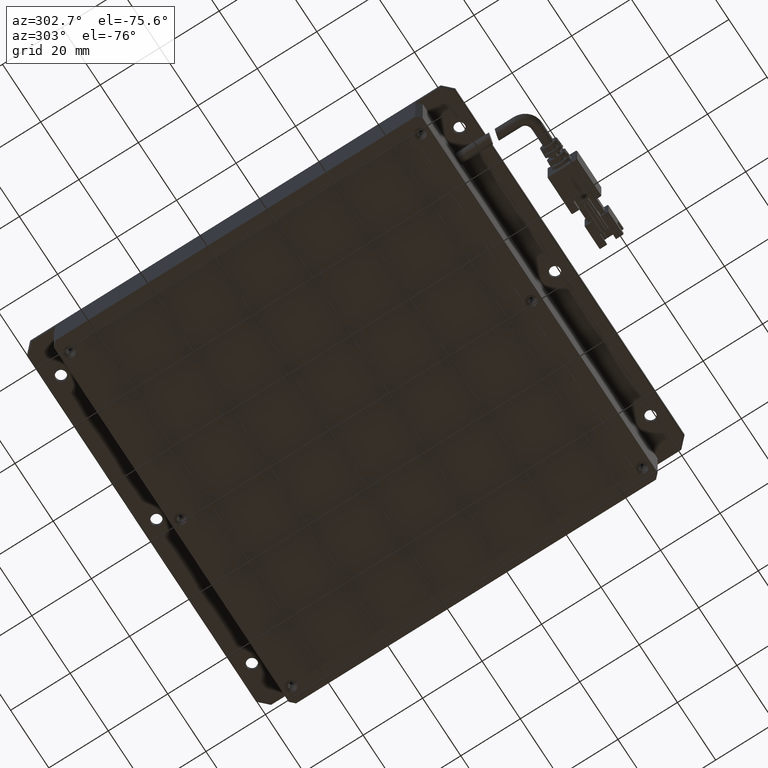
[diagram: clean part render]
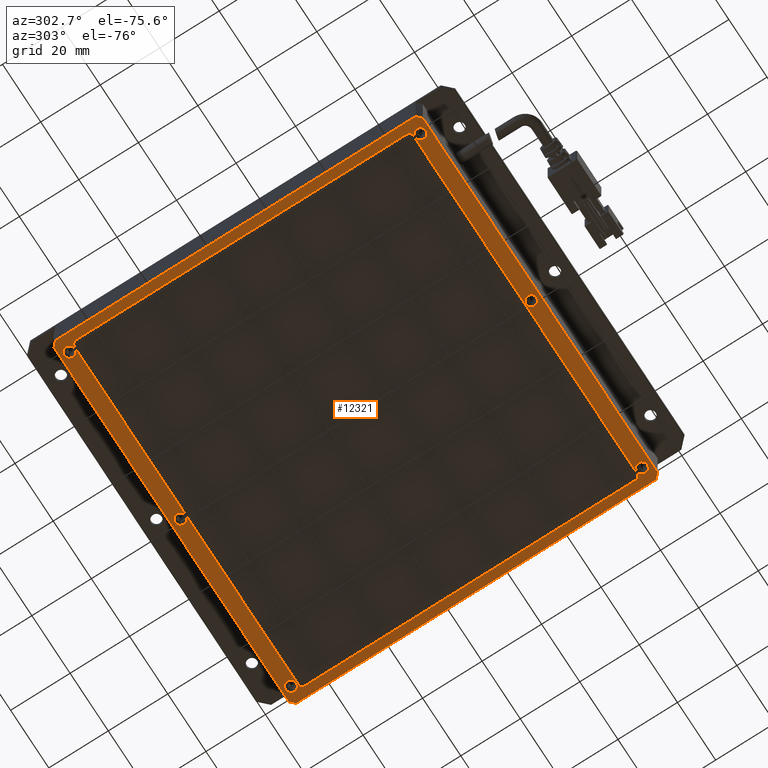
[diagram: same view with one face highlighted and labeled with its STEP entity id]
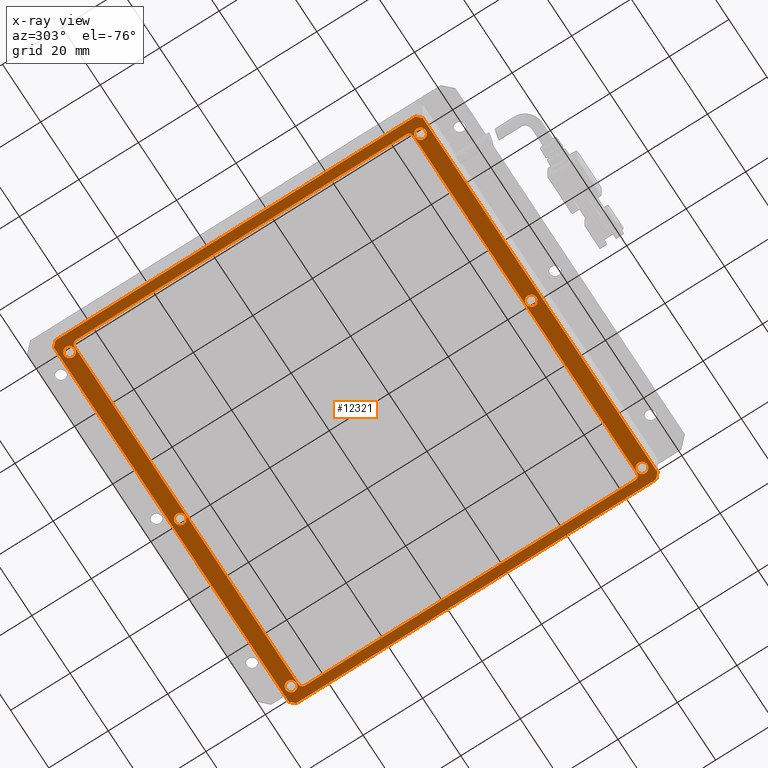
[diagram: x-ray of the same camera — body ghosted, the highlighted face saturated]
A machine part, auxiliary view. The second image highlights one B-rep face of the part: STEP entity #12321.
The next image is the same camera in x-ray: the body ghosted, the highlighted face saturated — about 0% of this face is hidden behind the body in this view.
In plain terms, the highlighted planar face has unit normal (0, 0, 1).
Its self-contained STEP definition (entity closure, byte-faithful):
#440 = AXIS2_PLACEMENT_3D ( 'NONE', #74087, #27330, #81998 ) ;
#531 = DIRECTION ( 'NONE',  ( -1.000000000000000000, 0.0000000000000000000, 0.0000000000000000000 ) ) ;
#542 = PLANE ( 'NONE',  #66380 ) ;
#879 = DIRECTION ( 'NONE',  ( -1.000000000000000000, -1.186135710069612200E-016, -0.0000000000000000000 ) ) ;
#1821 = CARTESIAN_POINT ( 'NONE',  ( -58.85509736540662100, -44.61034746086291100, -2.000000000016370500 ) ) ;
#2109 = DIRECTION ( 'NONE',  ( -0.7071067811865476800, -0.7071067811865474600, -0.0000000000000000000 ) ) ;
#2693 = VECTOR ( 'NONE', #25024, 1000.000000000000000 ) ;
#2706 = ORIENTED_EDGE ( 'NONE', *, *, #75679, .F. ) ;
#3501 = CARTESIAN_POINT ( 'NONE',  ( 58.14490263459337900, 66.38965253913711700, -2.000000000016370500 ) ) ;
#3723 = CARTESIAN_POINT ( 'NONE',  ( -58.35509736540665700, -48.11034746086285500, -1.999999999969077000 ) ) ;
#3908 = EDGE_CURVE ( 'NONE', #14291, #78319, #43312, .T. ) ;
#4017 = CARTESIAN_POINT ( 'NONE',  ( 1.444902634584452400, 69.88965253913711700, -2.000000000025920200 ) ) ;
#4241 = CIRCLE ( 'NONE', #57193, 1.799999999991086500 ) ;
#4464 = VERTEX_POINT ( 'NONE', #65370 ) ;
#4591 = CARTESIAN_POINT ( 'NONE',  ( -58.85509736540662100, -46.11034746086291100, -2.000000000016370500 ) ) ;
#4646 = VERTEX_POINT ( 'NONE', #5303 ) ;
#4801 = CARTESIAN_POINT ( 'NONE',  ( 59.64490263459336500, 66.38965253913711700, -2.000000000016370500 ) ) ;
#5161 = ORIENTED_EDGE ( 'NONE', *, *, #3908, .F. ) ;
#5303 = CARTESIAN_POINT ( 'NONE',  ( 61.14490263459332900, -51.11034746086289700, -2.000000000016370500 ) ) ;
#5624 = ORIENTED_EDGE ( 'NONE', *, *, #29976, .F. ) ;
#5629 = DIRECTION ( 'NONE',  ( 2.220446049250313100E-016, 1.000000000000000000, 0.0000000000000000000 ) ) ;
#5651 = CARTESIAN_POINT ( 'NONE',  ( 57.64490263459334300, -48.11034746086288300, -2.000000000025920200 ) ) ;
#5761 = ORIENTED_EDGE ( 'NONE', *, *, #56033, .F. ) ;
#5867 = CARTESIAN_POINT ( 'NONE',  ( 59.64490263459335000, -44.61034746086288300, -2.000000000016370500 ) ) ;
#5903 = CARTESIAN_POINT ( 'NONE',  ( 59.44490263459173500, 69.88965253913711700, -2.000000000025920200 ) ) ;
#6197 = VERTEX_POINT ( 'NONE', #72022 ) ;
#7665 = ORIENTED_EDGE ( 'NONE', *, *, #67743, .T. ) ;
#7766 = ORIENTED_EDGE ( 'NONE', *, *, #95490, .F. ) ;
#7785 = VERTEX_POINT ( 'NONE', #5903 ) ;
#8198 = FACE_BOUND ( 'NONE', #55170, .T. ) ;
#8314 = DIRECTION ( 'NONE',  ( -0.0000000000000000000, -0.0000000000000000000, 1.000000000000000000 ) ) ;
#9672 = DIRECTION ( 'NONE',  ( -1.000000000000000000, 0.0000000000000000000, 0.0000000000000000000 ) ) ;
#9941 = EDGE_CURVE ( 'NONE', #24478, #25543, #91719, .T. ) ;
#10024 = AXIS2_PLACEMENT_3D ( 'NONE', #3723, #58305, #11530 ) ;
#10477 = EDGE_CURVE ( 'NONE', #17158, #14399, #18162, .T. ) ;
#10598 = CIRCLE ( 'NONE', #440, 1.799999999983814500 ) ;
#11315 = DIRECTION ( 'NONE',  ( -1.000000000000000000, 0.0000000000000000000, 0.0000000000000000000 ) ) ;
#11530 = DIRECTION ( 'NONE',  ( -1.000000000000000000, 0.0000000000000000000, 0.0000000000000000000 ) ) ;
#12321 = ADVANCED_FACE ( 'NONE', ( #31469, #91363, #49776, #28983, #8198, #88924, #68015, #47318 ), #542, .F. ) ;
#12866 = VERTEX_POINT ( 'NONE', #15797 ) ;
#12951 = CIRCLE ( 'NONE', #53093, 1.799999999998365400 ) ;
#13172 = DIRECTION ( 'NONE',  ( 0.7071067811865411300, 0.7071067811865539000, -0.0000000000000000000 ) ) ;
#13478 = DIRECTION ( 'NONE',  ( -1.000000000000000000, 0.0000000000000000000, 0.0000000000000000000 ) ) ;
#13914 = ORIENTED_EDGE ( 'NONE', *, *, #45080, .F. ) ;
#14063 = EDGE_LOOP ( 'NONE', ( #51417, #22871 ) ) ;
#14291 = VERTEX_POINT ( 'NONE', #73460 ) ;
#14399 = VERTEX_POINT ( 'NONE', #4801 ) ;
#15280 = VERTEX_POINT ( 'NONE', #85291 ) ;
#15603 = ORIENTED_EDGE ( 'NONE', *, *, #20952, .F. ) ;
#15706 = VERTEX_POINT ( 'NONE', #75199 ) ;
#15797 = CARTESIAN_POINT ( 'NONE',  ( 62.64490263459333600, -49.61034746086289700, -2.000000000016370500 ) ) ;
#16691 = VECTOR ( 'NONE', #49073, 1000.000000000000000 ) ;
#17158 = VERTEX_POINT ( 'NONE', #94002 ) ;
#17235 = CARTESIAN_POINT ( 'NONE',  ( -58.85509736540662100, -46.11034746086291100, -2.000000000016370500 ) ) ;
#17367 = CARTESIAN_POINT ( 'NONE',  ( -56.55509736542284600, -48.11034746086285500, -1.999999999969077000 ) ) ;
#18162 = CIRCLE ( 'NONE', #37969, 1.499999999999994400 ) ;
#18848 = LINE ( 'NONE', #28828, #99577 ) ;
#19947 = AXIS2_PLACEMENT_3D ( 'NONE', #55095, #8314, #62918 ) ;
#20442 = DIRECTION ( 'NONE',  ( 0.0000000000000000000, 0.0000000000000000000, -1.000000000000000000 ) ) ;
#20952 = EDGE_CURVE ( 'NONE', #101360, #79548, #65846, .T. ) ;
#20986 = CIRCLE ( 'NONE', #49312, 1.799999999998365400 ) ;
#21128 = DIRECTION ( 'NONE',  ( 0.0000000000000000000, 0.0000000000000000000, -1.000000000000000000 ) ) ;
#21721 = CARTESIAN_POINT ( 'NONE',  ( 62.64490263459336500, 71.38965253913708900, -2.000000000016370500 ) ) ;
#21985 = CARTESIAN_POINT ( 'NONE',  ( -0.3550973654066619200, -48.11034746086286900, -2.000000000025920200 ) ) ;
#22819 = CARTESIAN_POINT ( 'NONE',  ( 61.14490263459339300, 72.88965253913708900, -2.000000000016370500 ) ) ;
#22871 = ORIENTED_EDGE ( 'NONE', *, *, #90495, .F. ) ;
#23173 = EDGE_CURVE ( 'NONE', #79007, #17158, #93232, .T. ) ;
#23321 = EDGE_LOOP ( 'NONE', ( #49355, #26774 ) ) ;
#24055 = AXIS2_PLACEMENT_3D ( 'NONE', #73592, #26841, #81493 ) ;
#24444 = DIRECTION ( 'NONE',  ( 0.0000000000000000000, 0.0000000000000000000, 1.000000000000000000 ) ) ;
#24478 = VERTEX_POINT ( 'NONE', #81053 ) ;
#25024 = DIRECTION ( 'NONE',  ( -2.220446049250313100E-016, -1.000000000000000000, -0.0000000000000000000 ) ) ;
#25223 = CIRCLE ( 'NONE', #24055, 1.799999999983814500 ) ;
#25288 = CARTESIAN_POINT ( 'NONE',  ( 61.14490263459333600, -51.11034746086289700, -2.000000000016370500 ) ) ;
#25543 = VERTEX_POINT ( 'NONE', #4591 ) ;
#25671 = ORIENTED_EDGE ( 'NONE', *, *, #93456, .T. ) ;
#26164 = ORIENTED_EDGE ( 'NONE', *, *, #76816, .F. ) ;
#26183 = CARTESIAN_POINT ( 'NONE',  ( -63.35509736540666400, -49.61034746086286900, -2.000000000016370500 ) ) ;
#26479 = DIRECTION ( 'NONE',  ( -0.0000000000000000000, -0.0000000000000000000, 1.000000000000000000 ) ) ;
#26774 = ORIENTED_EDGE ( 'NONE', *, *, #27397, .T. ) ;
#26841 = DIRECTION ( 'NONE',  ( -0.0000000000000000000, -0.0000000000000000000, 1.000000000000000000 ) ) ;
#27074 = LINE ( 'NONE', #25288, #89443 ) ;
#27330 = DIRECTION ( 'NONE',  ( 0.0000000000000000000, 0.0000000000000000000, -1.000000000000000000 ) ) ;
#27397 = EDGE_CURVE ( 'NONE', #6197, #41794, #42112, .T. ) ;
#27546 = CARTESIAN_POINT ( 'NONE',  ( -61.85509736540663500, -51.11034746086287600, -2.000000000016370500 ) ) ;
#28302 = EDGE_LOOP ( 'NONE', ( #2706, #5761 ) ) ;
#28688 = ORIENTED_EDGE ( 'NONE', *, *, #85680, .T. ) ;
#28766 = VERTEX_POINT ( 'NONE', #21721 ) ;
#28828 = CARTESIAN_POINT ( 'NONE',  ( -63.35509736540666400, -51.11034746086286900, -2.000000000016370500 ) ) ;
#28983 = FACE_BOUND ( 'NONE', #14063, .T. ) ;
#29857 = DIRECTION ( 'NONE',  ( -1.000000000000000000, 0.0000000000000000000, 0.0000000000000000000 ) ) ;
#29976 = EDGE_CURVE ( 'NONE', #79548, #101360, #54242, .T. ) ;
#30332 = DIRECTION ( 'NONE',  ( 0.7071067811865474600, -0.7071067811865476800, -0.0000000000000000000 ) ) ;
#31010 = CARTESIAN_POINT ( 'NONE',  ( 58.14490263459335000, -44.61034746086289000, -2.000000000016370500 ) ) ;
#31433 = ORIENTED_EDGE ( 'NONE', *, *, #9941, .F. ) ;
#31469 = FACE_BOUND ( 'NONE', #77094, .T. ) ;
#31583 = VERTEX_POINT ( 'NONE', #98974 ) ;
#32650 = DIRECTION ( 'NONE',  ( 0.0000000000000000000, 0.0000000000000000000, -1.000000000000000000 ) ) ;
#33558 = AXIS2_PLACEMENT_3D ( 'NONE', #79435, #32650, #87359 ) ;
#34021 = DIRECTION ( 'NONE',  ( -0.7071067811865474600, 0.7071067811865476800, 0.0000000000000000000 ) ) ;
#34121 = VECTOR ( 'NONE', #13172, 1000.000000000000000 ) ;
#34294 = CARTESIAN_POINT ( 'NONE',  ( -2.155097365397720600, 69.88965253913711700, -2.000000000025920200 ) ) ;
#34430 = EDGE_CURVE ( 'NONE', #36602, #7785, #20986, .T. ) ;
#35238 = VERTEX_POINT ( 'NONE', #68927 ) ;
#36538 = LINE ( 'NONE', #44288, #34121 ) ;
#36602 = VERTEX_POINT ( 'NONE', #38988 ) ;
#37073 = LINE ( 'NONE', #61872, #73742 ) ;
#37969 = AXIS2_PLACEMENT_3D ( 'NONE', #3501, #58041, #11315 ) ;
#38208 = VERTEX_POINT ( 'NONE', #17367 ) ;
#38788 = DIRECTION ( 'NONE',  ( -1.000000000000000000, 0.0000000000000000000, 0.0000000000000000000 ) ) ;
#38988 = CARTESIAN_POINT ( 'NONE',  ( 55.84490263459500200, 69.88965253913711700, -2.000000000025920200 ) ) ;
#41734 = ORIENTED_EDGE ( 'NONE', *, *, #23173, .F. ) ;
#41794 = VERTEX_POINT ( 'NONE', #97285 ) ;
#42112 = CIRCLE ( 'NONE', #84023, 1.799999999983814500 ) ;
#42534 = EDGE_CURVE ( 'NONE', #50732, #77488, #37073, .T. ) ;
#43013 = DIRECTION ( 'NONE',  ( 0.0000000000000000000, 0.0000000000000000000, -1.000000000000000000 ) ) ;
#43312 = LINE ( 'NONE', #58287, #64063 ) ;
#44288 = CARTESIAN_POINT ( 'NONE',  ( -61.85509736540663500, 72.88965253913711700, -2.000000000016370500 ) ) ;
#45080 = EDGE_CURVE ( 'NONE', #38208, #4464, #99896, .T. ) ;
#45270 = DIRECTION ( 'NONE',  ( 0.0000000000000000000, 0.0000000000000000000, -1.000000000000000000 ) ) ;
#45680 = CIRCLE ( 'NONE', #33558, 1.499999999999994400 ) ;
#46062 = LINE ( 'NONE', #77076, #66786 ) ;
#46553 = DIRECTION ( 'NONE',  ( 1.000000000000000000, -2.220446049250313100E-016, -0.0000000000000000000 ) ) ;
#47318 = FACE_BOUND ( 'NONE', #69818, .T. ) ;
#47338 = DIRECTION ( 'NONE',  ( 0.0000000000000000000, 0.0000000000000000000, -1.000000000000000000 ) ) ;
#48614 = CARTESIAN_POINT ( 'NONE',  ( 62.64490263459333600, -51.11034746086289700, -2.000000000016370500 ) ) ;
#48738 = ORIENTED_EDGE ( 'NONE', *, *, #42534, .T. ) ;
#48870 = VERTEX_POINT ( 'NONE', #27546 ) ;
#49073 = DIRECTION ( 'NONE',  ( -1.000000000000000000, 2.220446049250313100E-016, 0.0000000000000000000 ) ) ;
#49140 = CIRCLE ( 'NONE', #61281, 1.499999999999994400 ) ;
#49221 = ORIENTED_EDGE ( 'NONE', *, *, #88664, .T. ) ;
#49312 = AXIS2_PLACEMENT_3D ( 'NONE', #92123, #45270, #99978 ) ;
#49355 = ORIENTED_EDGE ( 'NONE', *, *, #85806, .T. ) ;
#49776 = FACE_BOUND ( 'NONE', #68275, .T. ) ;
#50732 = VERTEX_POINT ( 'NONE', #77355 ) ;
#51417 = ORIENTED_EDGE ( 'NONE', *, *, #34430, .F. ) ;
#51639 = VECTOR ( 'NONE', #61795, 1000.000000000000000 ) ;
#51763 = EDGE_CURVE ( 'NONE', #4464, #38208, #10598, .T. ) ;
#52239 = VERTEX_POINT ( 'NONE', #80171 ) ;
#52980 = AXIS2_PLACEMENT_3D ( 'NONE', #67157, #20442, #75043 ) ;
#53085 = CIRCLE ( 'NONE', #97302, 1.500000000000001300 ) ;
#53093 = AXIS2_PLACEMENT_3D ( 'NONE', #89887, #43013, #97730 ) ;
#53959 = CARTESIAN_POINT ( 'NONE',  ( 58.14490263459337900, 67.88965253913711700, -2.000000000016370500 ) ) ;
#54242 = CIRCLE ( 'NONE', #90663, 1.799999999991086500 ) ;
#54974 = VERTEX_POINT ( 'NONE', #99827 ) ;
#55095 = CARTESIAN_POINT ( 'NONE',  ( 57.64490263459334300, -48.11034746086288300, -2.000000000025920200 ) ) ;
#55170 = EDGE_LOOP ( 'NONE', ( #15603, #5624 ) ) ;
#55581 = CIRCLE ( 'NONE', #19947, 1.799999999998365400 ) ;
#55771 = VECTOR ( 'NONE', #34021, 1000.000000000000000 ) ;
#56033 = EDGE_CURVE ( 'NONE', #54974, #15706, #4241, .T. ) ;
#56366 = DIRECTION ( 'NONE',  ( 0.0000000000000000000, 0.0000000000000000000, -1.000000000000000000 ) ) ;
#57193 = AXIS2_PLACEMENT_3D ( 'NONE', #21985, #76596, #29857 ) ;
#58041 = DIRECTION ( 'NONE',  ( 0.0000000000000000000, 0.0000000000000000000, -1.000000000000000000 ) ) ;
#58090 = ORIENTED_EDGE ( 'NONE', *, *, #89455, .T. ) ;
#58287 = CARTESIAN_POINT ( 'NONE',  ( -60.35509736540662100, 66.38965253913713100, -2.000000000016370500 ) ) ;
#58305 = DIRECTION ( 'NONE',  ( 0.0000000000000000000, 0.0000000000000000000, -1.000000000000000000 ) ) ;
#59069 = ORIENTED_EDGE ( 'NONE', *, *, #76246, .T. ) ;
#60097 = EDGE_LOOP ( 'NONE', ( #49221, #28688, #7665, #78297, #58090, #48738, #89652, #25671 ) ) ;
#60219 = DIRECTION ( 'NONE',  ( -0.0000000000000000000, -0.0000000000000000000, 1.000000000000000000 ) ) ;
#61281 = AXIS2_PLACEMENT_3D ( 'NONE', #1821, #56366, #9672 ) ;
#61795 = DIRECTION ( 'NONE',  ( 1.000000000000000000, -1.186135710069611900E-016, -0.0000000000000000000 ) ) ;
#61872 = CARTESIAN_POINT ( 'NONE',  ( 62.64490263459336500, 72.88965253913708900, -2.000000000016370500 ) ) ;
#62419 = EDGE_CURVE ( 'NONE', #77488, #28766, #46062, .T. ) ;
#62918 = DIRECTION ( 'NONE',  ( -1.000000000000000000, 0.0000000000000000000, 0.0000000000000000000 ) ) ;
#64063 = VECTOR ( 'NONE', #74036, 1000.000000000000000 ) ;
#64667 = CARTESIAN_POINT ( 'NONE',  ( -60.35509736540662100, 66.38965253913713100, -2.000000000016370500 ) ) ;
#65353 = ORIENTED_EDGE ( 'NONE', *, *, #92614, .F. ) ;
#65370 = CARTESIAN_POINT ( 'NONE',  ( -60.15509736539047500, -48.11034746086285500, -1.999999999969077000 ) ) ;
#65846 = CIRCLE ( 'NONE', #52980, 1.799999999991086500 ) ;
#66380 = AXIS2_PLACEMENT_3D ( 'NONE', #71200, #24444, #79085 ) ;
#66526 = LINE ( 'NONE', #5867, #98410 ) ;
#66786 = VECTOR ( 'NONE', #30332, 1000.000000000000000 ) ;
#67157 = CARTESIAN_POINT ( 'NONE',  ( -0.3550973654066341700, 69.88965253913711700, -2.000000000025920200 ) ) ;
#67743 = EDGE_CURVE ( 'NONE', #48870, #52239, #97451, .T. ) ;
#67845 = CARTESIAN_POINT ( 'NONE',  ( -0.3550973654066619200, -48.11034746086286900, -2.000000000025920200 ) ) ;
#68015 = FACE_OUTER_BOUND ( 'NONE', #60097, .T. ) ;
#68137 = EDGE_CURVE ( 'NONE', #15280, #70962, #55581, .T. ) ;
#68275 = EDGE_LOOP ( 'NONE', ( #72007, #13914 ) ) ;
#68291 = DIRECTION ( 'NONE',  ( -1.250251153857158300E-016, -1.000000000000000000, -0.0000000000000000000 ) ) ;
#68927 = CARTESIAN_POINT ( 'NONE',  ( 59.64490263459335000, -44.61034746086289000, -2.000000000016370500 ) ) ;
#69818 = EDGE_LOOP ( 'NONE', ( #75346, #31433, #65353, #26164, #100019, #41734, #7766, #5161 ) ) ;
#70962 = VERTEX_POINT ( 'NONE', #74192 ) ;
#71200 = CARTESIAN_POINT ( 'NONE',  ( 62.64490263459336500, 72.88965253913708900, -2.000000000016370500 ) ) ;
#72007 = ORIENTED_EDGE ( 'NONE', *, *, #51763, .F. ) ;
#72022 = CARTESIAN_POINT ( 'NONE',  ( -56.55509736542281700, 69.88965253913714500, -1.999999999969077000 ) ) ;
#72187 = CIRCLE ( 'NONE', #92722, 1.799999999991086500 ) ;
#73244 = CARTESIAN_POINT ( 'NONE',  ( -58.35509736540662800, 69.88965253913714500, -1.999999999969077000 ) ) ;
#73460 = CARTESIAN_POINT ( 'NONE',  ( -60.35509736540662100, -44.61034746086291100, -2.000000000016370500 ) ) ;
#73592 = CARTESIAN_POINT ( 'NONE',  ( -58.35509736540662800, 69.88965253913714500, -1.999999999969077000 ) ) ;
#73742 = VECTOR ( 'NONE', #46553, 1000.000000000000000 ) ;
#74036 = DIRECTION ( 'NONE',  ( -0.0000000000000000000, 1.000000000000000000, -0.0000000000000000000 ) ) ;
#74087 = CARTESIAN_POINT ( 'NONE',  ( -58.35509736540665700, -48.11034746086285500, -1.999999999969077000 ) ) ;
#74192 = CARTESIAN_POINT ( 'NONE',  ( 59.44490263459170600, -48.11034746086288300, -2.000000000025920200 ) ) ;
#75043 = DIRECTION ( 'NONE',  ( -1.000000000000000000, 0.0000000000000000000, 0.0000000000000000000 ) ) ;
#75199 = CARTESIAN_POINT ( 'NONE',  ( -2.155097365397748500, -48.11034746086286900, -2.000000000025920200 ) ) ;
#75346 = ORIENTED_EDGE ( 'NONE', *, *, #93445, .F. ) ;
#75679 = EDGE_CURVE ( 'NONE', #15706, #54974, #72187, .T. ) ;
#75752 = DIRECTION ( 'NONE',  ( -1.000000000000000000, 0.0000000000000000000, 0.0000000000000000000 ) ) ;
#76246 = EDGE_CURVE ( 'NONE', #70962, #15280, #95069, .T. ) ;
#76596 = DIRECTION ( 'NONE',  ( 0.0000000000000000000, 0.0000000000000000000, -1.000000000000000000 ) ) ;
#76816 = EDGE_CURVE ( 'NONE', #14399, #35238, #66526, .T. ) ;
#77076 = CARTESIAN_POINT ( 'NONE',  ( 62.64490263459336500, 71.38965253913711700, -2.000000000016370500 ) ) ;
#77094 = EDGE_LOOP ( 'NONE', ( #93638, #59069 ) ) ;
#77355 = CARTESIAN_POINT ( 'NONE',  ( -61.85509736540662100, 72.88965253913711700, -2.000000000016370500 ) ) ;
#77488 = VERTEX_POINT ( 'NONE', #22819 ) ;
#78297 = ORIENTED_EDGE ( 'NONE', *, *, #80537, .T. ) ;
#78319 = VERTEX_POINT ( 'NONE', #64667 ) ;
#79007 = VERTEX_POINT ( 'NONE', #82021 ) ;
#79085 = DIRECTION ( 'NONE',  ( 1.000000000000000000, -2.220446049250313100E-016, 0.0000000000000000000 ) ) ;
#79435 = CARTESIAN_POINT ( 'NONE',  ( -58.85509736540662100, 66.38965253913713100, -2.000000000016370500 ) ) ;
#79548 = VERTEX_POINT ( 'NONE', #4017 ) ;
#80171 = CARTESIAN_POINT ( 'NONE',  ( -63.35509736540666400, -49.61034746086287600, -2.000000000016370500 ) ) ;
#80537 = EDGE_CURVE ( 'NONE', #52239, #31583, #18848, .T. ) ;
#81053 = CARTESIAN_POINT ( 'NONE',  ( 58.14490263459335000, -46.11034746086289700, -2.000000000016370500 ) ) ;
#81118 = DIRECTION ( 'NONE',  ( -1.000000000000000000, 0.0000000000000000000, 0.0000000000000000000 ) ) ;
#81493 = DIRECTION ( 'NONE',  ( -1.000000000000000000, 0.0000000000000000000, 0.0000000000000000000 ) ) ;
#81998 = DIRECTION ( 'NONE',  ( -1.000000000000000000, 0.0000000000000000000, 0.0000000000000000000 ) ) ;
#82021 = CARTESIAN_POINT ( 'NONE',  ( -58.85509736540662800, 67.88965253913713100, -2.000000000016370500 ) ) ;
#84023 = AXIS2_PLACEMENT_3D ( 'NONE', #73244, #26479, #81118 ) ;
#85291 = CARTESIAN_POINT ( 'NONE',  ( 55.84490263459497300, -48.11034746086288300, -2.000000000025920200 ) ) ;
#85680 = EDGE_CURVE ( 'NONE', #4646, #48870, #99846, .T. ) ;
#85691 = DIRECTION ( 'NONE',  ( 0.0000000000000000000, 0.0000000000000000000, -1.000000000000000000 ) ) ;
#85806 = EDGE_CURVE ( 'NONE', #41794, #6197, #25223, .T. ) ;
#85828 = LINE ( 'NONE', #48614, #2693 ) ;
#87359 = DIRECTION ( 'NONE',  ( -1.000000000000000000, 0.0000000000000000000, 0.0000000000000000000 ) ) ;
#88036 = CARTESIAN_POINT ( 'NONE',  ( 62.64490263459333600, -51.11034746086289700, -2.000000000016370500 ) ) ;
#88664 = EDGE_CURVE ( 'NONE', #12866, #4646, #27074, .T. ) ;
#88924 = FACE_BOUND ( 'NONE', #23321, .T. ) ;
#89278 = VECTOR ( 'NONE', #879, 1000.000000000000000 ) ;
#89443 = VECTOR ( 'NONE', #2109, 1000.000000000000000 ) ;
#89455 = EDGE_CURVE ( 'NONE', #31583, #50732, #36538, .T. ) ;
#89652 = ORIENTED_EDGE ( 'NONE', *, *, #62419, .T. ) ;
#89887 = CARTESIAN_POINT ( 'NONE',  ( 57.64490263459337200, 69.88965253913711700, -2.000000000025920200 ) ) ;
#90214 = AXIS2_PLACEMENT_3D ( 'NONE', #5651, #60219, #13478 ) ;
#90495 = EDGE_CURVE ( 'NONE', #7785, #36602, #12951, .T. ) ;
#90663 = AXIS2_PLACEMENT_3D ( 'NONE', #94177, #47338, #531 ) ;
#91363 = FACE_BOUND ( 'NONE', #28302, .T. ) ;
#91719 = LINE ( 'NONE', #17235, #89278 ) ;
#92123 = CARTESIAN_POINT ( 'NONE',  ( 57.64490263459337200, 69.88965253913711700, -2.000000000025920200 ) ) ;
#92614 = EDGE_CURVE ( 'NONE', #35238, #24478, #53085, .T. ) ;
#92722 = AXIS2_PLACEMENT_3D ( 'NONE', #67845, #21128, #75752 ) ;
#93232 = LINE ( 'NONE', #53959, #51639 ) ;
#93445 = EDGE_CURVE ( 'NONE', #25543, #14291, #49140, .T. ) ;
#93456 = EDGE_CURVE ( 'NONE', #28766, #12866, #85828, .T. ) ;
#93638 = ORIENTED_EDGE ( 'NONE', *, *, #68137, .T. ) ;
#94002 = CARTESIAN_POINT ( 'NONE',  ( 58.14490263459337900, 67.88965253913711700, -2.000000000016370500 ) ) ;
#94177 = CARTESIAN_POINT ( 'NONE',  ( -0.3550973654066341700, 69.88965253913711700, -2.000000000025920200 ) ) ;
#95069 = CIRCLE ( 'NONE', #90214, 1.799999999998365400 ) ;
#95490 = EDGE_CURVE ( 'NONE', #78319, #79007, #45680, .T. ) ;
#97285 = CARTESIAN_POINT ( 'NONE',  ( -60.15509736539044600, 69.88965253913714500, -1.999999999969077000 ) ) ;
#97302 = AXIS2_PLACEMENT_3D ( 'NONE', #31010, #85691, #38788 ) ;
#97451 = LINE ( 'NONE', #26183, #55771 ) ;
#97730 = DIRECTION ( 'NONE',  ( -1.000000000000000000, 0.0000000000000000000, 0.0000000000000000000 ) ) ;
#98410 = VECTOR ( 'NONE', #68291, 1000.000000000000000 ) ;
#98974 = CARTESIAN_POINT ( 'NONE',  ( -63.35509736540663500, 71.38965253913708900, -2.000000000016370500 ) ) ;
#99577 = VECTOR ( 'NONE', #5629, 1000.000000000000000 ) ;
#99827 = CARTESIAN_POINT ( 'NONE',  ( 1.444902634584424500, -48.11034746086286900, -2.000000000025920200 ) ) ;
#99846 = LINE ( 'NONE', #88036, #16691 ) ;
#99896 = CIRCLE ( 'NONE', #10024, 1.799999999983814500 ) ;
#99978 = DIRECTION ( 'NONE',  ( -1.000000000000000000, 0.0000000000000000000, 0.0000000000000000000 ) ) ;
#100019 = ORIENTED_EDGE ( 'NONE', *, *, #10477, .F. ) ;
#101360 = VERTEX_POINT ( 'NONE', #34294 ) ;